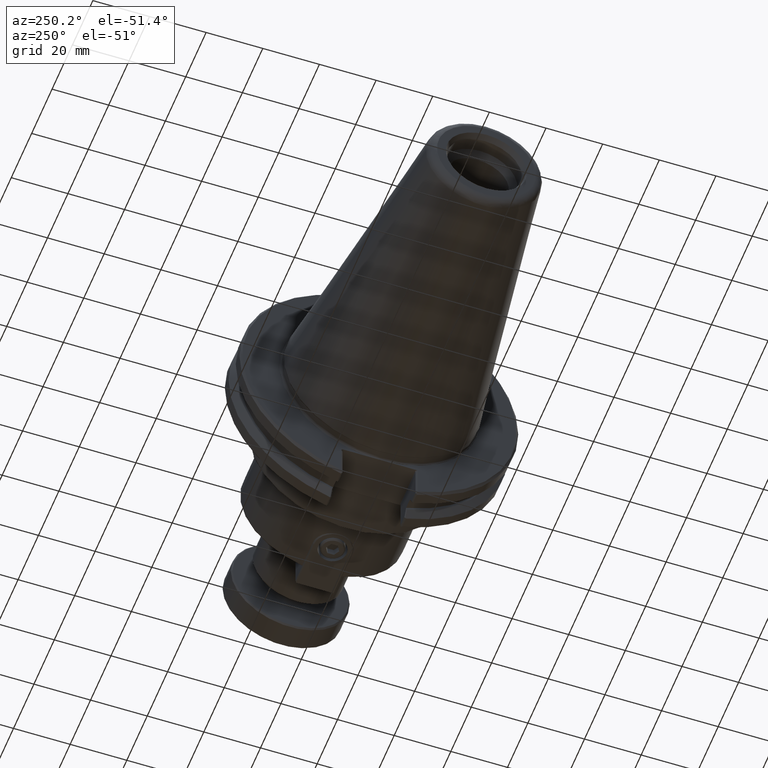
[diagram: clean part render]
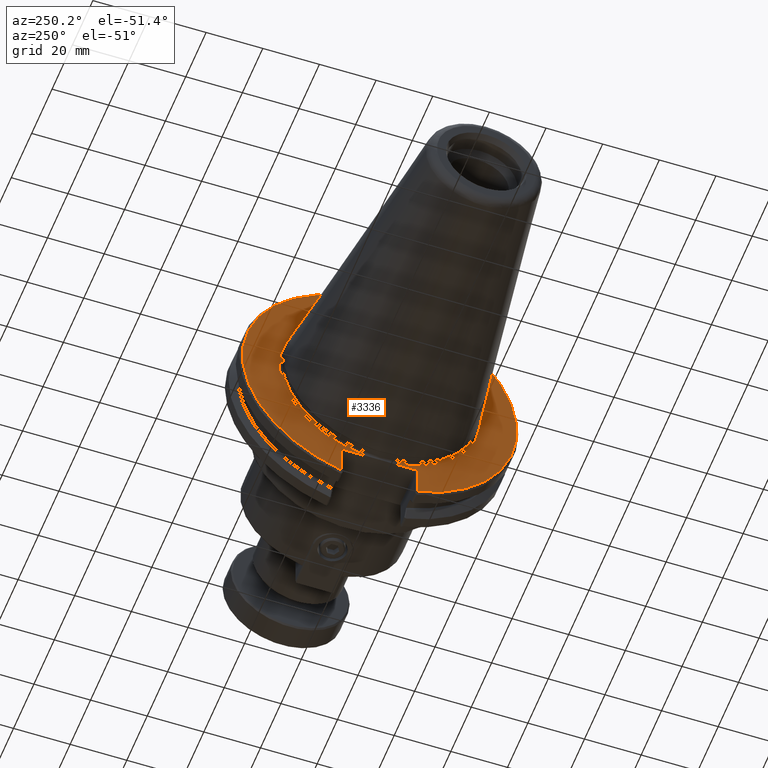
[diagram: same view with one face highlighted and labeled with its STEP entity id]
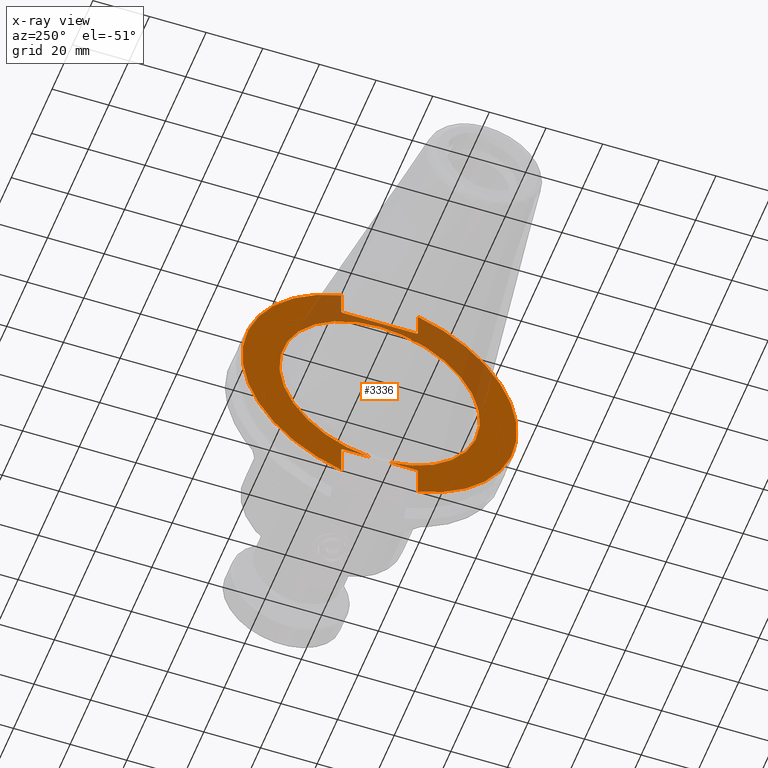
[diagram: x-ray of the same camera — body ghosted, the highlighted face saturated]
A machine part, auxiliary view. The second image highlights one B-rep face of the part: STEP entity #3336.
The next image is the same camera in x-ray: the body ghosted, the highlighted face saturated — about 25% of this face is hidden behind the body in this view.
In plain terms, the highlighted planar face has unit normal (-1, 0, 0).
Its self-contained STEP definition (entity closure, byte-faithful):
#50=ELLIPSE('',#3729,0.0282842712474618,0.02);
#54=ELLIPSE('',#3738,0.028284271247459,0.02);
#55=ELLIPSE('',#3742,0.0282842712474648,0.02);
#59=ELLIPSE('',#3751,0.0282842712474619,0.02);
#252=PLANE('',#3764);
#391=FACE_OUTER_BOUND('',#589,.T.);
#589=EDGE_LOOP('',(#2601,#2602,#2603,#2604,#2605,#2606,#2607,#2608,#2609,
#2610,#2611,#2612,#2613,#2614));
#782=CIRCLE('',#3760,1.395);
#786=CIRCLE('',#3765,1.9075);
#787=CIRCLE('',#3766,1.9075);
#946=LINE('',#6457,#1172);
#954=LINE('',#6489,#1180);
#962=LINE('',#6520,#1188);
#970=LINE('',#6552,#1196);
#972=LINE('',#6582,#1198);
#973=LINE('',#6584,#1199);
#974=LINE('',#6586,#1200);
#1172=VECTOR('',#4347,0.393700787401575);
#1180=VECTOR('',#4373,0.393700787401575);
#1188=VECTOR('',#4397,0.393700787401575);
#1196=VECTOR('',#4423,0.393700787401575);
#1198=VECTOR('',#4439,0.393700787401575);
#1199=VECTOR('',#4442,0.393700787401575);
#1200=VECTOR('',#4445,0.393700787401575);
#1469=VERTEX_POINT('',#6442);
#1470=VERTEX_POINT('',#6444);
#1473=VERTEX_POINT('',#6456);
#1478=VERTEX_POINT('',#6474);
#1479=VERTEX_POINT('',#6476);
#1482=VERTEX_POINT('',#6488);
#1484=VERTEX_POINT('',#6496);
#1485=VERTEX_POINT('',#6497);
#1491=VERTEX_POINT('',#6516);
#1494=VERTEX_POINT('',#6530);
#1495=VERTEX_POINT('',#6532);
#1500=VERTEX_POINT('',#6548);
#1502=VERTEX_POINT('',#6560);
#1504=VERTEX_POINT('',#6568);
#1854=EDGE_CURVE('',#1469,#1470,#50,.T.);
#1859=EDGE_CURVE('',#1470,#1473,#946,.T.);
#1868=EDGE_CURVE('',#1478,#1479,#54,.T.);
#1873=EDGE_CURVE('',#1479,#1482,#954,.T.);
#1876=EDGE_CURVE('',#1484,#1485,#55,.T.);
#1887=EDGE_CURVE('',#1491,#1484,#962,.T.);
#1892=EDGE_CURVE('',#1494,#1495,#59,.T.);
#1901=EDGE_CURVE('',#1500,#1494,#970,.T.);
#1905=EDGE_CURVE('',#1502,#1504,#782,.T.);
#1910=EDGE_CURVE('',#1485,#1502,#972,.T.);
#1911=EDGE_CURVE('',#1473,#1491,#786,.T.);
#1912=EDGE_CURVE('',#1495,#1469,#973,.T.);
#1913=EDGE_CURVE('',#1482,#1500,#787,.T.);
#1914=EDGE_CURVE('',#1504,#1478,#974,.T.);
#2601=ORIENTED_EDGE('',*,*,#1905,.F.);
#2602=ORIENTED_EDGE('',*,*,#1910,.F.);
#2603=ORIENTED_EDGE('',*,*,#1876,.F.);
#2604=ORIENTED_EDGE('',*,*,#1887,.F.);
#2605=ORIENTED_EDGE('',*,*,#1911,.F.);
#2606=ORIENTED_EDGE('',*,*,#1859,.F.);
#2607=ORIENTED_EDGE('',*,*,#1854,.F.);
#2608=ORIENTED_EDGE('',*,*,#1912,.F.);
#2609=ORIENTED_EDGE('',*,*,#1892,.F.);
#2610=ORIENTED_EDGE('',*,*,#1901,.F.);
#2611=ORIENTED_EDGE('',*,*,#1913,.F.);
#2612=ORIENTED_EDGE('',*,*,#1873,.F.);
#2613=ORIENTED_EDGE('',*,*,#1868,.F.);
#2614=ORIENTED_EDGE('',*,*,#1914,.F.);
#3336=ADVANCED_FACE('',(#391),#252,.T.);
#3729=AXIS2_PLACEMENT_3D('',#6445,#4338,#4339);
#3738=AXIS2_PLACEMENT_3D('',#6477,#4364,#4365);
#3742=AXIS2_PLACEMENT_3D('',#6498,#4377,#4378);
#3751=AXIS2_PLACEMENT_3D('',#6533,#4405,#4406);
#3760=AXIS2_PLACEMENT_3D('',#6569,#4429,#4430);
#3764=AXIS2_PLACEMENT_3D('',#6581,#4437,#4438);
#3765=AXIS2_PLACEMENT_3D('',#6583,#4440,#4441);
#3766=AXIS2_PLACEMENT_3D('',#6585,#4443,#4444);
#4338=DIRECTION('center_axis',(-1.,0.,0.));
#4339=DIRECTION('ref_axis',(3.41480999208035E-17,-1.,4.82927060372717E-17));
#4347=DIRECTION('',(0.,0.,1.));
#4364=DIRECTION('center_axis',(-1.,0.,0.));
#4365=DIRECTION('ref_axis',(0.,1.,1.4487811811183E-16));
#4373=DIRECTION('',(0.,0.,-1.));
#4377=DIRECTION('center_axis',(-1.,0.,0.));
#4378=DIRECTION('ref_axis',(-3.41480999207996E-17,-1.,1.448781181118E-16));
#4397=DIRECTION('',(0.,0.,1.));
#4405=DIRECTION('center_axis',(-1.,0.,0.));
#4406=DIRECTION('ref_axis',(3.41480999208035E-17,1.,1.44878118111815E-16));
#4423=DIRECTION('',(0.,0.,-1.));
#4429=DIRECTION('center_axis',(-1.,0.,0.));
#4430=DIRECTION('ref_axis',(0.,-1.,-1.22460635382238E-16));
#4437=DIRECTION('center_axis',(-1.,0.,0.));
#4438=DIRECTION('ref_axis',(0.,0.,1.));
#4439=DIRECTION('',(0.,1.,4.17909819565459E-33));
#4440=DIRECTION('center_axis',(1.,0.,0.));
#4441=DIRECTION('ref_axis',(0.,-1.,0.));
#4442=DIRECTION('',(0.,-1.,6.01790140173613E-31));
#4443=DIRECTION('center_axis',(1.,0.,0.));
#4444=DIRECTION('ref_axis',(0.,1.,0.));
#4445=DIRECTION('',(0.,1.,4.17909819565459E-33));
#6442=CARTESIAN_POINT('',(0.125,-0.504215728752359,1.472));
#6444=CARTESIAN_POINT('',(0.125,-0.532499999999821,1.492));
#6445=CARTESIAN_POINT('Origin',(0.125,-0.504215728752359,1.492));
#6456=CARTESIAN_POINT('',(0.125,-0.532499999999821,1.83166590840147));
#6457=CARTESIAN_POINT('',(0.125,-0.532499999999821,0.736));
#6474=CARTESIAN_POINT('',(0.125,0.504215728752758,-1.388));
#6476=CARTESIAN_POINT('',(0.125,0.532500000000217,-1.408));
#6477=CARTESIAN_POINT('Origin',(0.125,0.504215728752758,-1.408));
#6488=CARTESIAN_POINT('',(0.125,0.532500000000217,-1.83166590840136));
#6489=CARTESIAN_POINT('',(0.125,0.532500000000217,-0.694));
#6496=CARTESIAN_POINT('',(0.125,-0.532499999999783,-1.408));
#6497=CARTESIAN_POINT('',(0.125,-0.504215728752318,-1.388));
#6498=CARTESIAN_POINT('Origin',(0.125,-0.504215728752318,-1.408));
#6516=CARTESIAN_POINT('',(0.125,-0.532499999999783,-1.83166590840148));
#6520=CARTESIAN_POINT('',(0.125,-0.532499999999783,-0.694));
#6530=CARTESIAN_POINT('',(0.125,0.532500000000179,1.492));
#6532=CARTESIAN_POINT('',(0.125,0.504215728752717,1.472));
#6533=CARTESIAN_POINT('Origin',(0.125,0.504215728752717,1.492));
#6548=CARTESIAN_POINT('',(0.125,0.532500000000179,1.83166590840137));
#6552=CARTESIAN_POINT('',(0.125,0.532500000000179,0.736));
#6560=CARTESIAN_POINT('',(0.125,-0.139574352944947,-1.388));
#6568=CARTESIAN_POINT('',(0.125,0.139574352944947,-1.388));
#6569=CARTESIAN_POINT('Origin',(0.125,0.,0.));
#6581=CARTESIAN_POINT('Origin',(0.125,1.65625,0.));
#6582=CARTESIAN_POINT('',(0.125,0.828125000000135,-1.388));
#6583=CARTESIAN_POINT('Origin',(0.125,0.,0.));
#6584=CARTESIAN_POINT('',(0.125,0.828125000000089,1.472));
#6585=CARTESIAN_POINT('Origin',(0.125,0.,0.));
#6586=CARTESIAN_POINT('',(0.125,0.828125000000135,-1.388));